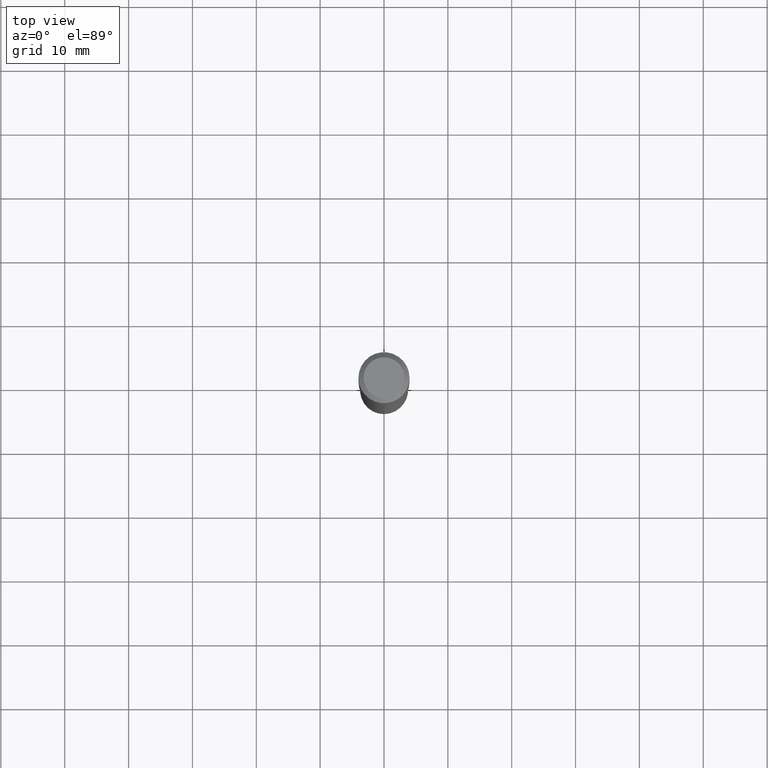
[diagram: clean part render]
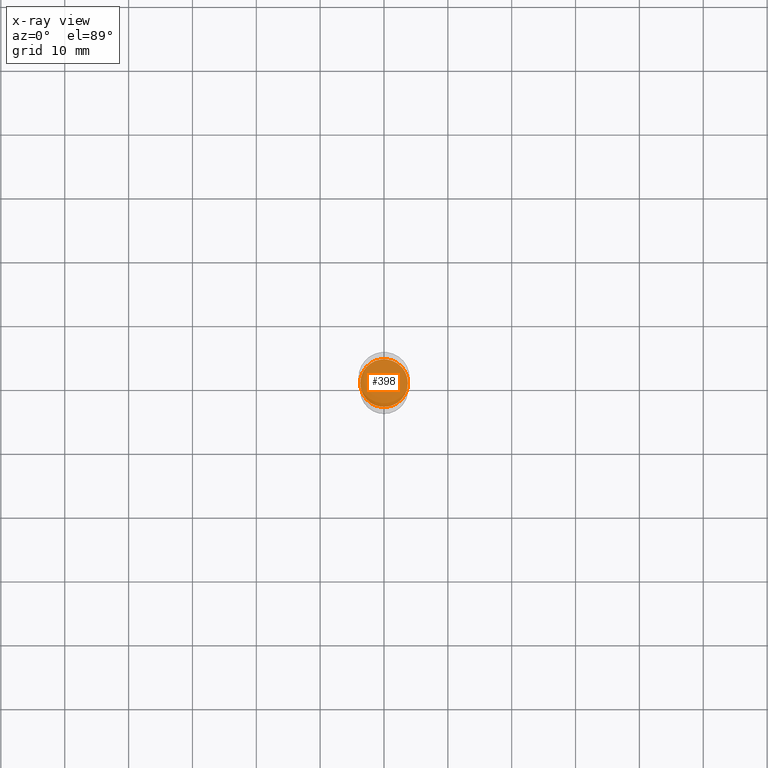
[diagram: x-ray — body ghosted, one internal face saturated and labeled with its STEP entity id]
A machine part, top view, then the same camera in x-ray: the body is ghosted and one INTERNAL B-rep face — a face not visible from any outside direction — is saturated and labeled: STEP entity #398.
In plain terms, the highlighted planar face has unit normal (-0, 0, 1).
Its self-contained STEP definition (entity closure, byte-faithful):
#28 = PLANE ( 'NONE',  #405 ) ;
#29 = DIRECTION ( 'NONE',  ( -2.445468806185136597E-29, 3.491481338843145583E-15, 1.000000000000000000 ) ) ;
#59 = CARTESIAN_POINT ( 'NONE',  ( 0.1471500000000000030, -7.900523973534265784E-15, -1.968500000000000139 ) ) ;
#72 = CARTESIAN_POINT ( 'NONE',  ( 4.813905344975441835E-29, -6.872981015512731707E-15, -1.968500000000000139 ) ) ;
#80 = ORIENTED_EDGE ( 'NONE', *, *, #364, .F. ) ;
#86 = AXIS2_PLACEMENT_3D ( 'NONE', #272, #90, #435 ) ;
#88 = DIRECTION ( 'NONE',  ( -2.438088387897960049E-29, 3.491481338843145188E-15, 1.000000000000000000 ) ) ;
#90 = DIRECTION ( 'NONE',  ( -2.445468806185136597E-29, 3.491481338843145583E-15, 1.000000000000000000 ) ) ;
#119 = DIRECTION ( 'NONE',  ( 1.000000000000000000, -6.982962677686265922E-15, 4.876176775795935793E-29 ) ) ;
#166 = CARTESIAN_POINT ( 'NONE',  ( -0.1471500000000000030, -5.824768152667633850E-15, -1.968500000000000139 ) ) ;
#171 = DIRECTION ( 'NONE',  ( 1.000000000000000000, -6.982962677686267499E-15, 0.000000000000000000 ) ) ;
#196 = AXIS2_PLACEMENT_3D ( 'NONE', #72, #29, #171 ) ;
#223 = FACE_OUTER_BOUND ( 'NONE', #343, .T. ) ;
#243 = CIRCLE ( 'NONE', #196, 0.1471500000000000030 ) ;
#272 = CARTESIAN_POINT ( 'NONE',  ( 4.813905344975441835E-29, -6.872981015512731707E-15, -1.968500000000000139 ) ) ;
#317 = ORIENTED_EDGE ( 'NONE', *, *, #325, .F. ) ;
#325 = EDGE_CURVE ( 'NONE', #344, #386, #460, .T. ) ;
#343 = EDGE_LOOP ( 'NONE', ( #80, #317 ) ) ;
#344 = VERTEX_POINT ( 'NONE', #166 ) ;
#364 = EDGE_CURVE ( 'NONE', #386, #344, #243, .T. ) ;
#386 = VERTEX_POINT ( 'NONE', #59 ) ;
#398 = ADVANCED_FACE ( 'NONE', ( #223 ), #28, .F. ) ;
#405 = AXIS2_PLACEMENT_3D ( 'NONE', #445, #88, #119 ) ;
#435 = DIRECTION ( 'NONE',  ( 1.000000000000000000, -6.982962677686267499E-15, 0.000000000000000000 ) ) ;
#445 = CARTESIAN_POINT ( 'NONE',  ( -2.899857587203679207E-30, -1.418204357144627130E-14, -1.968499999999999694 ) ) ;
#460 = CIRCLE ( 'NONE', #86, 0.1471500000000000030 ) ;